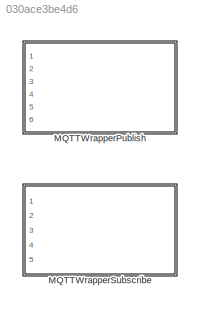
MODEL slx_030ace3be4d6
KIND model
CONFIG AbsTol = auto
CONFIG EnableMultiTasking = off
CONFIG FixedStep = auto
CONFIG MaxStep = auto
CONFIG MinStep = auto
CONFIG RelTol = 1e-3
CONFIG SampleTimeConstraint = Unconstrained
CONFIG SolverName = VariableStepAuto
CONFIG StartTime = 0.0
CONFIG StopTime = 10.0
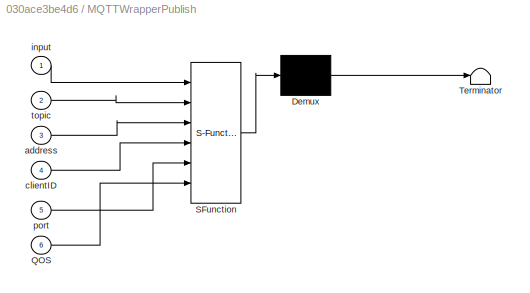
BLOCK [SubSystem] MQTTWrapperPublish
  ErrorFcn = Stateflow.Translate.translate
  PermitHierarchicalResolution = ExplicitOnly
  Ports = [6]
  RequestExecContextInheritance = off
  SFBlockType = MATLAB Function
  TreatAsAtomicUnit = on
BLOCK [Demux] MQTTWrapperPublish/ Demux 
  Outputs = 1
  Ports = [1, 1]
BLOCK [S-Function] MQTTWrapperPublish/ SFunction 
  EnableBusSupport = off
  FunctionName = sf_sfun
  PortCounts = [6 1]
  Ports = [6, 1]
  SFcnIsStateOwnerBlock = off
  SFunctionDeploymentMode = off
  Tag = Stateflow S-Function 1
BLOCK [Terminator] MQTTWrapperPublish/ Terminator 
BLOCK [Inport] MQTTWrapperPublish/QOS
  Port = 6
BLOCK [Inport] MQTTWrapperPublish/address
  Port = 3
BLOCK [Inport] MQTTWrapperPublish/clientID
  Port = 4
BLOCK [Inport] MQTTWrapperPublish/input
BLOCK [Inport] MQTTWrapperPublish/port
  Port = 5
BLOCK [Inport] MQTTWrapperPublish/topic
  Port = 2
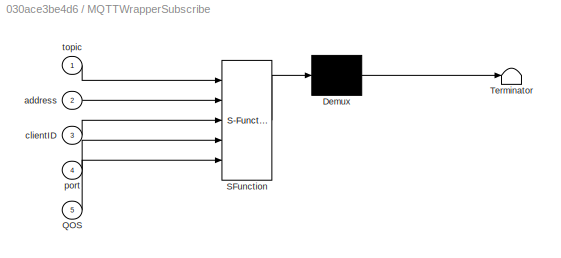
BLOCK [SubSystem] MQTTWrapperSubscribe
  ErrorFcn = Stateflow.Translate.translate
  PermitHierarchicalResolution = ExplicitOnly
  Ports = [5]
  RequestExecContextInheritance = off
  SFBlockType = MATLAB Function
  TreatAsAtomicUnit = on
BLOCK [Demux] MQTTWrapperSubscribe/ Demux 
  Outputs = 1
  Ports = [1, 1]
BLOCK [S-Function] MQTTWrapperSubscribe/ SFunction 
  EnableBusSupport = off
  FunctionName = sf_sfun
  PortCounts = [5 1]
  Ports = [5, 1]
  SFcnIsStateOwnerBlock = off
  SFunctionDeploymentMode = off
  Tag = Stateflow S-Function 2
BLOCK [Terminator] MQTTWrapperSubscribe/ Terminator 
BLOCK [Inport] MQTTWrapperSubscribe/QOS
  Port = 5
BLOCK [Inport] MQTTWrapperSubscribe/address
  Port = 2
BLOCK [Inport] MQTTWrapperSubscribe/clientID
  Port = 3
BLOCK [Inport] MQTTWrapperSubscribe/port
  Port = 4
BLOCK [Inport] MQTTWrapperSubscribe/topic
CHART MQTTWrapperPublish states=1 transitions=1
  STATE_LABEL 'eML_blk_kernel()'
  STATE_LABEL "SCRIPT:\nfunction fcn(input, topic, address, clientID, port, QOS)\ncoder.extrinsic('MQTTWrapperPublish')\nMQTTWrapperPublish(input, topic, address, clientID, port, QOS)\nend\n"
CHART MQTTWrapperSubscribe states=1 transitions=1
  STATE_LABEL 'eML_blk_kernel()'
  STATE_LABEL "SCRIPT:\nfunction fcn(topic, address, clientID, port, QOS)\ncoder.extrinsic('MQTTWrapperSubscribe')\nMQTTWrapperSubscribe(topic, address, clientID, port, QOS)\nend\n"
CHART  states=0 transitions=0
CHART  states=0 transitions=0
